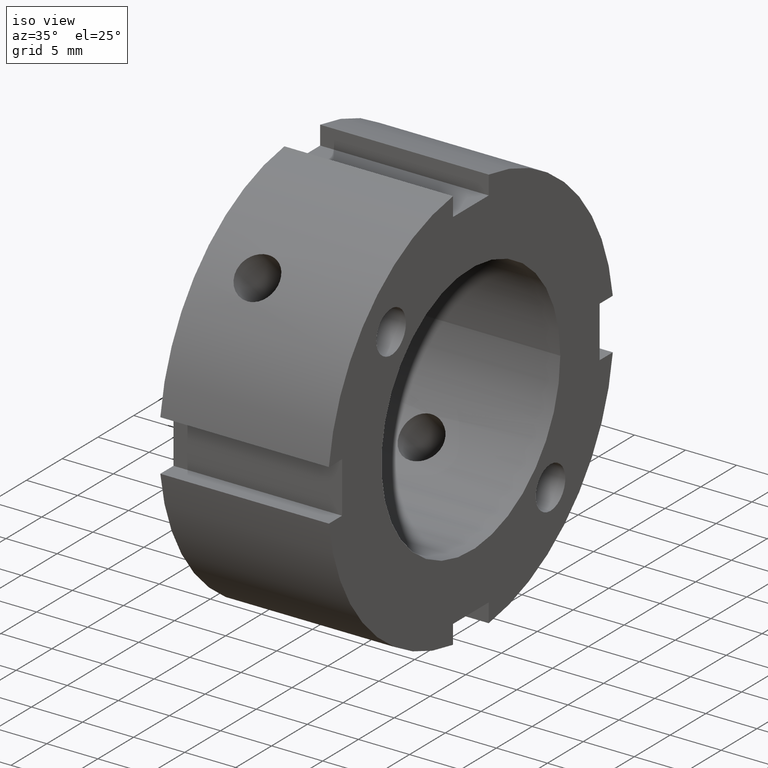
[diagram: clean part render]
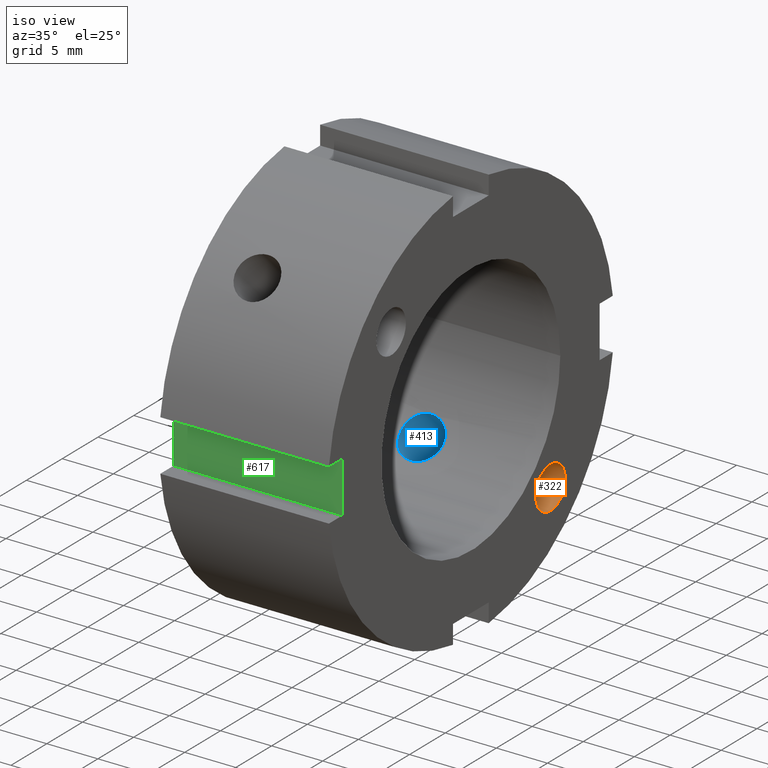
[diagram: same view with three faces highlighted in distinct colors, each labeled with its STEP entity id]
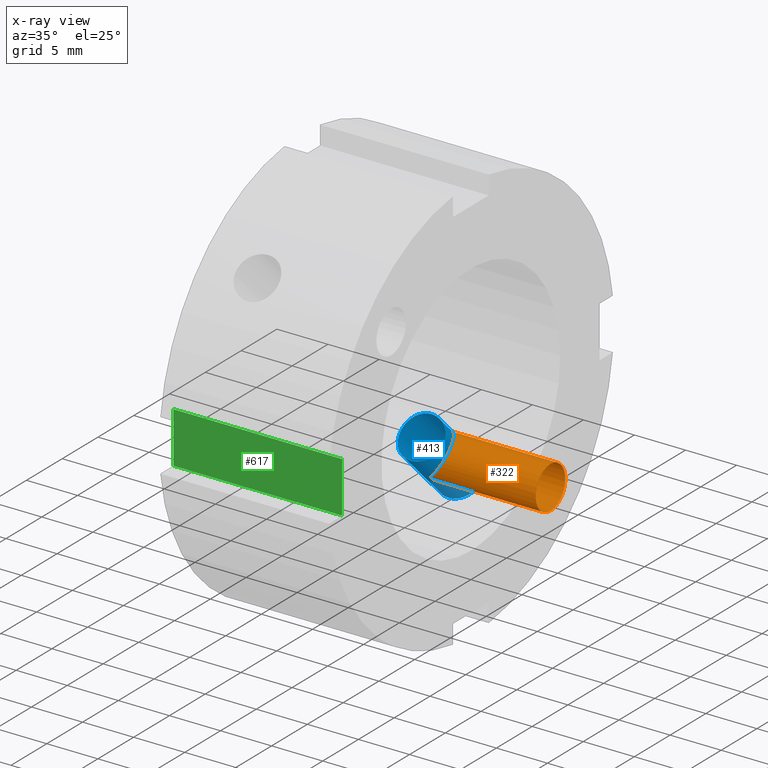
[diagram: x-ray of the same camera — body ghosted, the three highlighted faces saturated]
A machine part, iso view with three faces highlighted in distinct colors.
The next image is the same camera in x-ray (body ghosted, the three faces saturated) — at least one of them is partly hidden behind the body in this view.
Their STEP definitions:

[orange] entity #322 — the highlighted cylindrical surface (bore or boss wall) has radius 2.067 mm, axis along (1, 0, 0).
#241=CARTESIAN_POINT('',(11.499999999999996,11.136931803688128,-11.136931803688121));
#242=DIRECTION('',(1.0,0.0,0.0));
#243=DIRECTION('',(0.0,0.0,-1.0));
#244=AXIS2_PLACEMENT_3D('',#241,#242,#243);
#245=CYLINDRICAL_SURFACE('',#244,2.067);
#246=CARTESIAN_POINT('',(6.370824756455077,12.598521520400723,-9.67534208697553));
#247=VERTEX_POINT('',#246);
#248=CARTESIAN_POINT('',(6.370824756455077,12.598521520400723,-9.67534208697553));
#249=CARTESIAN_POINT('',(6.370824756455077,12.536488536471577,-9.613309103046383));
#250=CARTESIAN_POINT('',(6.398686747881434,12.484192426526363,-9.567952910686943));
#251=CARTESIAN_POINT('',(6.465821169682756,12.381815499578037,-9.485546768323951));
#252=CARTESIAN_POINT('',(6.506950014581344,12.332207558450659,-9.449435528717293));
#253=CARTESIAN_POINT('',(6.642032766500671,12.177185207860013,-9.346464190459509));
#254=CARTESIAN_POINT('',(6.746297766625895,12.068041021572036,-9.286890612679194));
#255=CARTESIAN_POINT('',(7.07458670223982,11.706881817973828,-9.132896582556096));
#256=CARTESIAN_POINT('',(7.309510867309999,11.426382276473069,-9.069931803688117));
#257=CARTESIAN_POINT('',(7.668468549369401,10.902655652080991,-9.069931803688117));
#258=CARTESIAN_POINT('',(7.822995877064941,10.637068640710066,-9.11241385328203));
#259=CARTESIAN_POINT('',(7.98507413401973,10.25211746995951,-9.263804850129219));
#260=CARTESIAN_POINT('',(8.027903580642864,10.125811891333875,-9.32850939488551));
#261=CARTESIAN_POINT('',(8.08536317978305,9.887634008290158,-9.484072969476076));
#262=CARTESIAN_POINT('',(8.099999999999994,9.775758912056533,-9.574925261894526));
#263=CARTESIAN_POINT('',(8.099999999999998,9.574925261894547,-9.77575891205651));
#264=CARTESIAN_POINT('',(8.085363179783055,9.484072969476095,-9.887634008290133));
#265=CARTESIAN_POINT('',(8.027903580642873,9.328509394885527,-10.125811891333852));
#266=CARTESIAN_POINT('',(7.985074134019744,9.263804850129233,-10.252117469959487));
#267=CARTESIAN_POINT('',(7.822995877064959,9.112413853282039,-10.637068640710046));
#268=CARTESIAN_POINT('',(7.668468549369424,9.069931803688128,-10.902655652080973));
#269=CARTESIAN_POINT('',(7.309510867310034,9.069931803688125,-11.426382276473039));
#270=CARTESIAN_POINT('',(7.074586702239868,9.132896582556095,-11.706881817973791));
#271=CARTESIAN_POINT('',(6.746297766625959,9.286890612679189,-12.068041021572));
#272=CARTESIAN_POINT('',(6.642032766500735,9.346464190459495,-12.177185207859972));
#273=CARTESIAN_POINT('',(6.506950014581411,9.449435528717281,-12.332207558450623));
#274=CARTESIAN_POINT('',(6.465821169682839,9.485546768323943,-12.381815499578011));
#275=CARTESIAN_POINT('',(6.39868674788152,9.567952910686939,-12.484192426526345));
#276=CARTESIAN_POINT('',(6.370824756455164,9.613309103046387,-12.536488536471566));
#277=CARTESIAN_POINT('',(6.370824756455162,9.737375070904676,-12.660554504329857));
#278=CARTESIAN_POINT('',(6.398686747881522,9.789671180849899,-12.705910696689308));
#279=CARTESIAN_POINT('',(6.465821169682839,9.892048107798232,-12.788316839052303));
#280=CARTESIAN_POINT('',(6.506950014581409,9.941656048925614,-12.824428078658961));
#281=CARTESIAN_POINT('',(6.642032766500725,10.096678399516261,-12.927399416916746));
#282=CARTESIAN_POINT('',(6.746297766625951,10.205822585804235,-12.986972994697055));
#283=CARTESIAN_POINT('',(7.074586702239863,10.566981789402444,-13.140967024820151));
#284=CARTESIAN_POINT('',(7.309510867310025,10.8474813309032,-13.203931803688121));
#285=CARTESIAN_POINT('',(7.668468549369417,11.371207955295271,-13.203931803688121));
#286=CARTESIAN_POINT('',(7.822995877064956,11.636794966666198,-13.161449754094207));
#287=CARTESIAN_POINT('',(7.98507413401974,12.021746137416752,-13.010058757247018));
#288=CARTESIAN_POINT('',(8.027903580642871,12.148051716042392,-12.945354212490727));
#289=CARTESIAN_POINT('',(8.085363179783055,12.386229599086109,-12.789790637900161));
#290=CARTESIAN_POINT('',(8.099999999999996,12.498104695319729,-12.698938345481707));
#291=CARTESIAN_POINT('',(8.099999999999996,12.698938345481711,-12.498104695319725));
#292=CARTESIAN_POINT('',(8.085363179783052,12.789790637900165,-12.386229599086104));
#293=CARTESIAN_POINT('',(8.027903580642864,12.945354212490736,-12.148051716042382));
#294=CARTESIAN_POINT('',(7.985074134019734,13.01005875724703,-12.021746137416747));
#295=CARTESIAN_POINT('',(7.822995877064944,13.161449754094219,-11.636794966666193));
#296=CARTESIAN_POINT('',(7.668468549369408,13.203931803688128,-11.371207955295265));
#297=CARTESIAN_POINT('',(7.309510867310003,13.203931803688128,-10.847481330903186));
#298=CARTESIAN_POINT('',(7.074586702239824,13.140967024820156,-10.566981789402428));
#299=CARTESIAN_POINT('',(6.746297766625897,12.986972994697057,-10.205822585804219));
#300=CARTESIAN_POINT('',(6.64203276650067,12.927399416916742,-10.096678399516243));
#301=CARTESIAN_POINT('',(6.506950014581338,12.824428078658956,-9.941656048925598));
#302=CARTESIAN_POINT('',(6.46582116968276,12.788316839052298,-9.892048107798214));
#303=CARTESIAN_POINT('',(6.398686747881438,12.705910696689308,-9.789671180849888));
#304=CARTESIAN_POINT('',(6.370824756455077,12.66055450432987,-9.737375070904676));
#305=CARTESIAN_POINT('',(6.370824756455077,12.598521520400723,-9.67534208697553));
#306=B_SPLINE_CURVE_WITH_KNOTS('',3,(#248,#249,#250,#251,#252,#253,#254,#255,#256,#257,#258,#259,#260,#261,#262,#263,#264,#265,#266,#267,#268,#269,#270,#271,#272,#273,#274,#275,#276,#277,#278,#279,#280,#281,#282,#283,#284,#285,#286,#287,#288,#289,#290,#291,#292,#293,#294,#295,#296,#297,#298,#299,#300,#301,#302,#303,#304,#305),.UNSPECIFIED.,.T.,.U.,(4,2,2,2,2,2,2,2,2,2,2,2,2,2,2,2,2,2,2,2,2,2,2,2,2,2,2,2,4),(0.0,0.026318366156122,0.052636732312243,0.105273464624486,0.210546929248972,0.295753430800964,0.338356681576959,0.380959932352955,0.423563183128951,0.466166433904947,0.551372935456938,0.656646400081421,0.709283132393662,0.735601498549782,0.761919864705903,0.788238230862023,0.814556597018144,0.867193329330386,0.972466793954868,1.05767329550686,1.100276546282855,1.142879797058851,1.185483047834847,1.228086298610843,1.313292800162834,1.418566264787322,1.471202997099566,1.497521363255687,1.523839729411809),.UNSPECIFIED.);
#307=EDGE_CURVE('',#247,#247,#306,.T.);
#308=ORIENTED_EDGE('',*,*,#307,.F.);
#309=EDGE_LOOP('',(#308));
#310=FACE_OUTER_BOUND('',#309,.T.);
#311=CARTESIAN_POINT('',(16.999999999999996,11.136931803688128,-13.203931803688123));
#312=VERTEX_POINT('',#311);
#313=CARTESIAN_POINT('',(16.999999999999996,11.136931803688128,-11.136931803688121));
#314=DIRECTION('',(-1.0,0.0,0.0));
#315=DIRECTION('',(0.0,0.0,-1.0));
#316=AXIS2_PLACEMENT_3D('',#313,#314,#315);
#317=CIRCLE('',#316,2.067);
#318=EDGE_CURVE('',#312,#312,#317,.T.);
#319=ORIENTED_EDGE('',*,*,#318,.F.);
#320=EDGE_LOOP('',(#319));
#321=FACE_BOUND('',#320,.T.);
#322=ADVANCED_FACE('',(#310,#321),#245,.F.);

[blue] entity #413 — the highlighted cylindrical surface (bore or boss wall) has radius 2.1 mm, axis along (0, -0.7071, 0.7071).
#246=CARTESIAN_POINT('',(6.370824756455077,12.598521520400723,-9.67534208697553));
#247=VERTEX_POINT('',#246);
#248=CARTESIAN_POINT('',(6.370824756455077,12.598521520400723,-9.67534208697553));
#249=CARTESIAN_POINT('',(6.370824756455077,12.536488536471577,-9.613309103046383));
#250=CARTESIAN_POINT('',(6.398686747881434,12.484192426526363,-9.567952910686943));
#251=CARTESIAN_POINT('',(6.465821169682756,12.381815499578037,-9.485546768323951));
#252=CARTESIAN_POINT('',(6.506950014581344,12.332207558450659,-9.449435528717293));
#253=CARTESIAN_POINT('',(6.642032766500671,12.177185207860013,-9.346464190459509));
#254=CARTESIAN_POINT('',(6.746297766625895,12.068041021572036,-9.286890612679194));
#255=CARTESIAN_POINT('',(7.07458670223982,11.706881817973828,-9.132896582556096));
#256=CARTESIAN_POINT('',(7.309510867309999,11.426382276473069,-9.069931803688117));
#257=CARTESIAN_POINT('',(7.668468549369401,10.902655652080991,-9.069931803688117));
#258=CARTESIAN_POINT('',(7.822995877064941,10.637068640710066,-9.11241385328203));
#259=CARTESIAN_POINT('',(7.98507413401973,10.25211746995951,-9.263804850129219));
#260=CARTESIAN_POINT('',(8.027903580642864,10.125811891333875,-9.32850939488551));
#261=CARTESIAN_POINT('',(8.08536317978305,9.887634008290158,-9.484072969476076));
#262=CARTESIAN_POINT('',(8.099999999999994,9.775758912056533,-9.574925261894526));
#263=CARTESIAN_POINT('',(8.099999999999998,9.574925261894547,-9.77575891205651));
#264=CARTESIAN_POINT('',(8.085363179783055,9.484072969476095,-9.887634008290133));
#265=CARTESIAN_POINT('',(8.027903580642873,9.328509394885527,-10.125811891333852));
#266=CARTESIAN_POINT('',(7.985074134019744,9.263804850129233,-10.252117469959487));
#267=CARTESIAN_POINT('',(7.822995877064959,9.112413853282039,-10.637068640710046));
#268=CARTESIAN_POINT('',(7.668468549369424,9.069931803688128,-10.902655652080973));
#269=CARTESIAN_POINT('',(7.309510867310034,9.069931803688125,-11.426382276473039));
#270=CARTESIAN_POINT('',(7.074586702239868,9.132896582556095,-11.706881817973791));
#271=CARTESIAN_POINT('',(6.746297766625959,9.286890612679189,-12.068041021572));
#272=CARTESIAN_POINT('',(6.642032766500735,9.346464190459495,-12.177185207859972));
#273=CARTESIAN_POINT('',(6.506950014581411,9.449435528717281,-12.332207558450623));
#274=CARTESIAN_POINT('',(6.465821169682839,9.485546768323943,-12.381815499578011));
#275=CARTESIAN_POINT('',(6.39868674788152,9.567952910686939,-12.484192426526345));
#276=CARTESIAN_POINT('',(6.370824756455164,9.613309103046387,-12.536488536471566));
#277=CARTESIAN_POINT('',(6.370824756455162,9.737375070904676,-12.660554504329857));
#278=CARTESIAN_POINT('',(6.398686747881522,9.789671180849899,-12.705910696689308));
#279=CARTESIAN_POINT('',(6.465821169682839,9.892048107798232,-12.788316839052303));
#280=CARTESIAN_POINT('',(6.506950014581409,9.941656048925614,-12.824428078658961));
#281=CARTESIAN_POINT('',(6.642032766500725,10.096678399516261,-12.927399416916746));
#282=CARTESIAN_POINT('',(6.746297766625951,10.205822585804235,-12.986972994697055));
#283=CARTESIAN_POINT('',(7.074586702239863,10.566981789402444,-13.140967024820151));
#284=CARTESIAN_POINT('',(7.309510867310025,10.8474813309032,-13.203931803688121));
#285=CARTESIAN_POINT('',(7.668468549369417,11.371207955295271,-13.203931803688121));
#286=CARTESIAN_POINT('',(7.822995877064956,11.636794966666198,-13.161449754094207));
#287=CARTESIAN_POINT('',(7.98507413401974,12.021746137416752,-13.010058757247018));
#288=CARTESIAN_POINT('',(8.027903580642871,12.148051716042392,-12.945354212490727));
#289=CARTESIAN_POINT('',(8.085363179783055,12.386229599086109,-12.789790637900161));
#290=CARTESIAN_POINT('',(8.099999999999996,12.498104695319729,-12.698938345481707));
#291=CARTESIAN_POINT('',(8.099999999999996,12.698938345481711,-12.498104695319725));
#292=CARTESIAN_POINT('',(8.085363179783052,12.789790637900165,-12.386229599086104));
#293=CARTESIAN_POINT('',(8.027903580642864,12.945354212490736,-12.148051716042382));
#294=CARTESIAN_POINT('',(7.985074134019734,13.01005875724703,-12.021746137416747));
#295=CARTESIAN_POINT('',(7.822995877064944,13.161449754094219,-11.636794966666193));
#296=CARTESIAN_POINT('',(7.668468549369408,13.203931803688128,-11.371207955295265));
#297=CARTESIAN_POINT('',(7.309510867310003,13.203931803688128,-10.847481330903186));
#298=CARTESIAN_POINT('',(7.074586702239824,13.140967024820156,-10.566981789402428));
#299=CARTESIAN_POINT('',(6.746297766625897,12.986972994697057,-10.205822585804219));
#300=CARTESIAN_POINT('',(6.64203276650067,12.927399416916742,-10.096678399516243));
#301=CARTESIAN_POINT('',(6.506950014581338,12.824428078658956,-9.941656048925598));
#302=CARTESIAN_POINT('',(6.46582116968276,12.788316839052298,-9.892048107798214));
#303=CARTESIAN_POINT('',(6.398686747881438,12.705910696689308,-9.789671180849888));
#304=CARTESIAN_POINT('',(6.370824756455077,12.66055450432987,-9.737375070904676));
#305=CARTESIAN_POINT('',(6.370824756455077,12.598521520400723,-9.67534208697553));
#306=B_SPLINE_CURVE_WITH_KNOTS('',3,(#248,#249,#250,#251,#252,#253,#254,#255,#256,#257,#258,#259,#260,#261,#262,#263,#264,#265,#266,#267,#268,#269,#270,#271,#272,#273,#274,#275,#276,#277,#278,#279,#280,#281,#282,#283,#284,#285,#286,#287,#288,#289,#290,#291,#292,#293,#294,#295,#296,#297,#298,#299,#300,#301,#302,#303,#304,#305),.UNSPECIFIED.,.T.,.U.,(4,2,2,2,2,2,2,2,2,2,2,2,2,2,2,2,2,2,2,2,2,2,2,2,2,2,2,2,4),(0.0,0.026318366156122,0.052636732312243,0.105273464624486,0.210546929248972,0.295753430800964,0.338356681576959,0.380959932352955,0.423563183128951,0.466166433904947,0.551372935456938,0.656646400081421,0.709283132393662,0.735601498549782,0.761919864705903,0.788238230862023,0.814556597018144,0.867193329330386,0.972466793954868,1.05767329550686,1.100276546282855,1.142879797058851,1.185483047834847,1.228086298610843,1.313292800162834,1.418566264787322,1.471202997099566,1.497521363255687,1.523839729411809),.UNSPECIFIED.);
#307=EDGE_CURVE('',#247,#247,#306,.T.);
#323=CARTESIAN_POINT('',(5.999999999999996,41.466854233230663,-41.46685423323067));
#324=DIRECTION('',(0.0,-0.707106781186547,0.707106781186548));
#325=DIRECTION('',(1.0,0.0,0.0));
#326=AXIS2_PLACEMENT_3D('',#323,#324,#325);
#327=CYLINDRICAL_SURFACE('',#326,2.1);
#328=CARTESIAN_POINT('',(5.999999999999996,12.579036794721617,-15.548885275705119));
#329=VERTEX_POINT('',#328);
#330=CARTESIAN_POINT('',(5.999999999999996,12.579036794721617,-15.548885275705119));
#331=CARTESIAN_POINT('',(6.263890083593098,12.579036794721617,-15.548885275705119));
#332=CARTESIAN_POINT('',(6.545235937781681,12.620453155101021,-15.515661773209475));
#333=CARTESIAN_POINT('',(7.062574468211521,12.786811376909203,-15.378850830171316));
#334=CARTESIAN_POINT('',(7.298583818077659,12.91152997104,-15.275055123636349));
#335=CARTESIAN_POINT('',(7.671263891218532,13.194674433769752,-15.031150372504083));
#336=CARTESIAN_POINT('',(7.832848505654875,13.3719947091896,-14.874702546907898));
#337=CARTESIAN_POINT('',(8.047221925868556,13.752524988666648,-14.523604056714827));
#338=CARTESIAN_POINT('',(8.099999999999996,13.955537928890319,-14.32873331857158));
#339=CARTESIAN_POINT('',(8.099999999999996,14.328733318571576,-13.955537928890326));
#340=CARTESIAN_POINT('',(8.047221925868556,14.523604056714824,-13.752524988666654));
#341=CARTESIAN_POINT('',(7.832848505654879,14.874702546907891,-13.371994709189611));
#342=CARTESIAN_POINT('',(7.671263891218532,15.031150372504069,-13.194674433769764));
#343=CARTESIAN_POINT('',(7.29858381807766,15.275055123636339,-12.911529971040014));
#344=CARTESIAN_POINT('',(7.062574468211525,15.378850830171309,-12.786811376909206));
#345=CARTESIAN_POINT('',(6.545235937781685,15.515661773209468,-12.620453155101025));
#346=CARTESIAN_POINT('',(6.263890083593098,15.548885275705118,-12.579036794721626));
#347=CARTESIAN_POINT('',(5.736109916406895,15.548885275705118,-12.579036794721626));
#348=CARTESIAN_POINT('',(5.45476406221831,15.515661773209469,-12.620453155101028));
#349=CARTESIAN_POINT('',(4.93742553178847,15.378850830171311,-12.786811376909208));
#350=CARTESIAN_POINT('',(4.701416181922334,15.275055123636342,-12.911529971040007));
#351=CARTESIAN_POINT('',(4.328736108781461,15.031150372504074,-13.194674433769757));
#352=CARTESIAN_POINT('',(4.167151494345116,14.874702546907892,-13.371994709189609));
#353=CARTESIAN_POINT('',(3.952778074131436,14.52360405671482,-13.752524988666654));
#354=CARTESIAN_POINT('',(3.899999999999996,14.328733318571576,-13.955537928890326));
#355=CARTESIAN_POINT('',(3.899999999999996,13.955537928890319,-14.32873331857158));
#356=CARTESIAN_POINT('',(3.952778074131438,13.752524988666648,-14.523604056714827));
#357=CARTESIAN_POINT('',(4.167151494345119,13.3719947091896,-14.874702546907898));
#358=CARTESIAN_POINT('',(4.32873610878146,13.194674433769752,-15.031150372504083));
#359=CARTESIAN_POINT('',(4.701416181922333,12.91152997104,-15.275055123636349));
#360=CARTESIAN_POINT('',(4.937425531788472,12.786811376909203,-15.378850830171316));
#361=CARTESIAN_POINT('',(5.454764062218312,12.620453155101021,-15.515661773209475));
#362=CARTESIAN_POINT('',(5.736109916406895,12.579036794721617,-15.548885275705119));
#363=CARTESIAN_POINT('',(5.999999999999996,12.579036794721617,-15.548885275705119));
#364=B_SPLINE_CURVE_WITH_KNOTS('',3,(#330,#331,#332,#333,#334,#335,#336,#337,#338,#339,#340,#341,#342,#343,#344,#345,#346,#347,#348,#349,#350,#351,#352,#353,#354,#355,#356,#357,#358,#359,#360,#361,#362,#363),.UNSPECIFIED.,.T.,.U.,(4,2,2,2,2,2,2,2,2,2,2,2,2,2,2,2,4),(0.0,0.07916702507793,0.158334050155861,0.237500747381212,0.316667444606564,0.395834141831916,0.475000839057267,0.554167864135197,0.633334889213128,0.712501914291058,0.791668939368989,0.870835636594341,0.950002333819692,1.029169031045044,1.108335728270396,1.187502753348326,1.266669778426257),.UNSPECIFIED.);
#365=EDGE_CURVE('',#329,#329,#364,.T.);
#366=ORIENTED_EDGE('',*,*,#365,.F.);
#367=EDGE_LOOP('',(#366));
#368=FACE_OUTER_BOUND('',#367,.T.);
#369=ORIENTED_EDGE('',*,*,#307,.T.);
#370=EDGE_LOOP('',(#369));
#371=FACE_BOUND('',#370,.T.);
#372=CARTESIAN_POINT('',(5.999999999999996,7.228284123825032,-10.198132604808537));
#373=VERTEX_POINT('',#372);
#374=CARTESIAN_POINT('',(5.999999999999996,7.228284123825034,-10.198132604808537));
#375=CARTESIAN_POINT('',(5.735776505277135,7.228284123825034,-10.198132604808537));
#376=CARTESIAN_POINT('',(5.454291118680819,7.272326662017701,-10.167352052052244));
#377=CARTESIAN_POINT('',(4.937047321501836,7.447800600406271,-10.039524336396388));
#378=CARTESIAN_POINT('',(4.701244965673831,7.578855103776627,-9.942138120032242));
#379=CARTESIAN_POINT('',(4.328911688932861,7.873633530815144,-9.710357777380867));
#380=CARTESIAN_POINT('',(4.167375678812121,8.057102403893202,-9.560348644030137));
#381=CARTESIAN_POINT('',(3.952906098045958,8.446438049773525,-9.218180385001553));
#382=CARTESIAN_POINT('',(3.899999999999996,8.652005693899641,-9.02566383576405));
#383=CARTESIAN_POINT('',(3.899999999999997,9.025663835764044,-8.65200569389965));
#384=CARTESIAN_POINT('',(3.952906098045955,9.218180385001546,-8.446438049773535));
#385=CARTESIAN_POINT('',(4.167375678812113,9.560348644030126,-8.057102403893214));
#386=CARTESIAN_POINT('',(4.328911688932863,9.710357777380857,-7.873633530815162));
#387=CARTESIAN_POINT('',(4.70124496567383,9.942138120032233,-7.578855103776644));
#388=CARTESIAN_POINT('',(4.937047321501831,10.039524336396383,-7.447800600406279));
#389=CARTESIAN_POINT('',(5.454291118680813,10.167352052052243,-7.272326662017709));
#390=CARTESIAN_POINT('',(5.735776505277134,10.198132604808535,-7.228284123825041));
#391=CARTESIAN_POINT('',(6.264223494722858,10.198132604808535,-7.228284123825041));
#392=CARTESIAN_POINT('',(6.545708881319178,10.167352052052243,-7.272326662017709));
#393=CARTESIAN_POINT('',(7.06295267849816,10.039524336396386,-7.447800600406278));
#394=CARTESIAN_POINT('',(7.298755034326162,9.942138120032238,-7.578855103776636));
#395=CARTESIAN_POINT('',(7.671088311067131,9.710357777380862,-7.873633530815152));
#396=CARTESIAN_POINT('',(7.832624321187875,9.560348644030132,-8.057102403893207));
#397=CARTESIAN_POINT('',(8.047093901954037,9.218180385001549,-8.446438049773532));
#398=CARTESIAN_POINT('',(8.099999999999996,9.025663835764046,-8.652005693899646));
#399=CARTESIAN_POINT('',(8.099999999999996,8.652005693899643,-9.02566383576405));
#400=CARTESIAN_POINT('',(8.047093901954035,8.446438049773528,-9.218180385001553));
#401=CARTESIAN_POINT('',(7.832624321187875,8.057102403893206,-9.560348644030134));
#402=CARTESIAN_POINT('',(7.671088311067131,7.873633530815147,-9.71035777738086));
#403=CARTESIAN_POINT('',(7.298755034326163,7.578855103776631,-9.942138120032237));
#404=CARTESIAN_POINT('',(7.06295267849816,7.447800600406275,-10.039524336396388));
#405=CARTESIAN_POINT('',(6.545708881319178,7.272326662017704,-10.167352052052248));
#406=CARTESIAN_POINT('',(6.264223494722858,7.228284123825032,-10.198132604808537));
#407=CARTESIAN_POINT('',(5.999999999999996,7.228284123825032,-10.198132604808537));
#408=B_SPLINE_CURVE_WITH_KNOTS('',3,(#374,#375,#376,#377,#378,#379,#380,#381,#382,#383,#384,#385,#386,#387,#388,#389,#390,#391,#392,#393,#394,#395,#396,#397,#398,#399,#400,#401,#402,#403,#404,#405,#406,#407),.UNSPECIFIED.,.T.,.U.,(4,2,2,2,2,2,2,2,2,2,2,2,2,2,2,2,4),(0.0,0.079267048416859,0.158534096833717,0.237798958621083,0.317063820408449,0.396328682195814,0.475593543983179,0.554860592400038,0.634127640816897,0.713394689233755,0.792661737650614,0.87192659943798,0.951191461225345,1.030456323012711,1.109721184800076,1.188988233216935,1.268255281633794),.UNSPECIFIED.);
#409=EDGE_CURVE('',#373,#373,#408,.T.);
#410=ORIENTED_EDGE('',*,*,#409,.F.);
#411=EDGE_LOOP('',(#410));
#412=FACE_BOUND('',#411,.T.);
#413=ADVANCED_FACE('',(#368,#371,#412),#327,.F.);

[green] entity #617 — the highlighted planar face has unit normal (0, 1, 0).
#521=CARTESIAN_POINT('',(0.499999999999998,-18.0,2.500000000000002));
#522=VERTEX_POINT('',#521);
#531=CARTESIAN_POINT('',(16.999999999999996,-18.0,2.500000000000002));
#532=VERTEX_POINT('',#531);
#533=CARTESIAN_POINT('',(16.999999999999996,-18.0,2.500000000000002));
#534=DIRECTION('',(-1.0,0.0,0.0));
#535=VECTOR('',#534,16.5);
#536=LINE('',#533,#535);
#537=EDGE_CURVE('',#532,#522,#536,.T.);
#563=CARTESIAN_POINT('',(0.499999999999998,-18.0,-2.499999999999997));
#564=VERTEX_POINT('',#563);
#579=CARTESIAN_POINT('',(16.999999999999996,-18.0,-2.499999999999997));
#580=VERTEX_POINT('',#579);
#587=CARTESIAN_POINT('',(16.999999999999996,-18.0,-2.499999999999997));
#588=DIRECTION('',(-1.0,0.0,0.0));
#589=VECTOR('',#588,16.5);
#590=LINE('',#587,#589);
#591=EDGE_CURVE('',#580,#564,#590,.T.);
#596=CARTESIAN_POINT('',(16.999999999999996,-18.0,-2.499999999999997));
#597=DIRECTION('',(0.0,1.0,0.0));
#598=DIRECTION('',(0.0,0.0,1.0));
#599=AXIS2_PLACEMENT_3D('',#596,#597,#598);
#600=PLANE('',#599);
#601=CARTESIAN_POINT('',(0.499999999999998,-18.0,-2.499999999999997));
#602=DIRECTION('',(0.0,0.0,1.0));
#603=VECTOR('',#602,4.999999999999998);
#604=LINE('',#601,#603);
#605=EDGE_CURVE('',#564,#522,#604,.T.);
#606=ORIENTED_EDGE('',*,*,#605,.F.);
#607=ORIENTED_EDGE('',*,*,#591,.F.);
#608=CARTESIAN_POINT('',(16.999999999999996,-18.0,2.500000000000002));
#609=DIRECTION('',(0.0,0.0,-1.0));
#610=VECTOR('',#609,4.999999999999998);
#611=LINE('',#608,#610);
#612=EDGE_CURVE('',#532,#580,#611,.T.);
#613=ORIENTED_EDGE('',*,*,#612,.F.);
#614=ORIENTED_EDGE('',*,*,#537,.T.);
#615=EDGE_LOOP('',(#606,#607,#613,#614));
#616=FACE_OUTER_BOUND('',#615,.T.);
#617=ADVANCED_FACE('',(#616),#600,.F.);